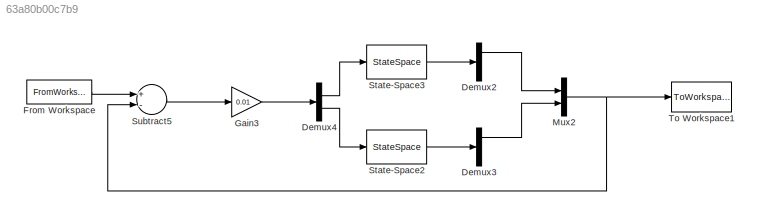
MODEL slx_63a80b00c7b9
KIND model
CONFIG AbsTol = auto
CONFIG FixedStep = auto
CONFIG MaxStep = auto
CONFIG MinStep = auto
CONFIG RelTol = 1e-3
CONFIG SampleTimeConstraint = Unconstrained
CONFIG Solver = VariableStepAuto
CONFIG SolverMode = Auto
CONFIG SolverName = VariableStepAuto
CONFIG StartTime = 0.0
CONFIG StopTime = 20
BLOCK [Demux] Demux2
  DisplayOption = bar
  Outputs = 3
  Ports = [1, 3]
BLOCK [Demux] Demux3
  DisplayOption = bar
  Outputs = 3
  Ports = [1, 3]
BLOCK [Demux] Demux4
  DisplayOption = bar
  Outputs = 2
  Ports = [1, 2]
BLOCK [FromWorkspace] From Workspace
  SampleTime = 0
  VariableName = thetaR1
  ZeroCross = on
BLOCK [Gain] Gain3
  Gain = 0.01
  OutDataTypeStr = Inherit: Inherit via internal rule
  ParamDataTypeStr = Inherit: Inherit via internal rule
  SaturateOnIntegerOverflow = off
BLOCK [Mux] Mux2
  DisplayOption = bar
  Inputs = 2
  Ports = [2, 1]
BLOCK [StateSpace] State-Space2
  A = A2
  B = B2
  C = eye(3)
  D = zeros(3,1)
  Ports = [1, 1]
  X0 = 0
BLOCK [StateSpace] State-Space3
  A = A1
  B = B1
  C = eye(3)
  D = zeros(3,1)
  Ports = [1, 1]
  X0 = 0
BLOCK [Sum] Subtract5
  InputSameDT = off
  Inputs = +-
  OutDataTypeStr = Inherit: Inherit via internal rule
  Ports = [2, 1]
  SaturateOnIntegerOverflow = off
BLOCK [ToWorkspace] To Workspace1
  FixptAsFi = on
  MaxDataPoints = inf
  Ports = [1]
  SampleTime = -1
  Save2DSignal = 3-D array (concatenate along third dimension)
  VariableName = thetaF1
LINE Demux2:1 -> Mux2:1
LINE Demux3:1 -> Mux2:2
LINE Demux4:1 -> State-Space3:1
LINE Demux4:2 -> State-Space2:1
LINE From Workspace:1 -> Subtract5:1
LINE Gain3:1 -> Demux4:1
NET Mux2:1 -> Subtract5:2, To Workspace1:1
LINE State-Space2:1 -> Demux3:1
LINE State-Space3:1 -> Demux2:1
LINE Subtract5:1 -> Gain3:1
note: NET lines group one-source signal fan-out (src -> all destinations, sorted); 1:1 wires keep LINE
